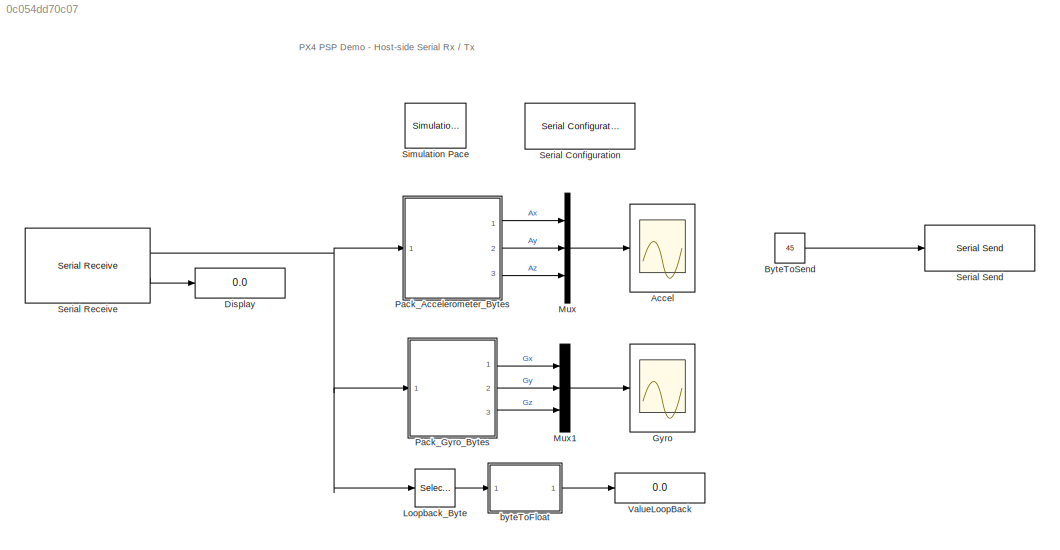
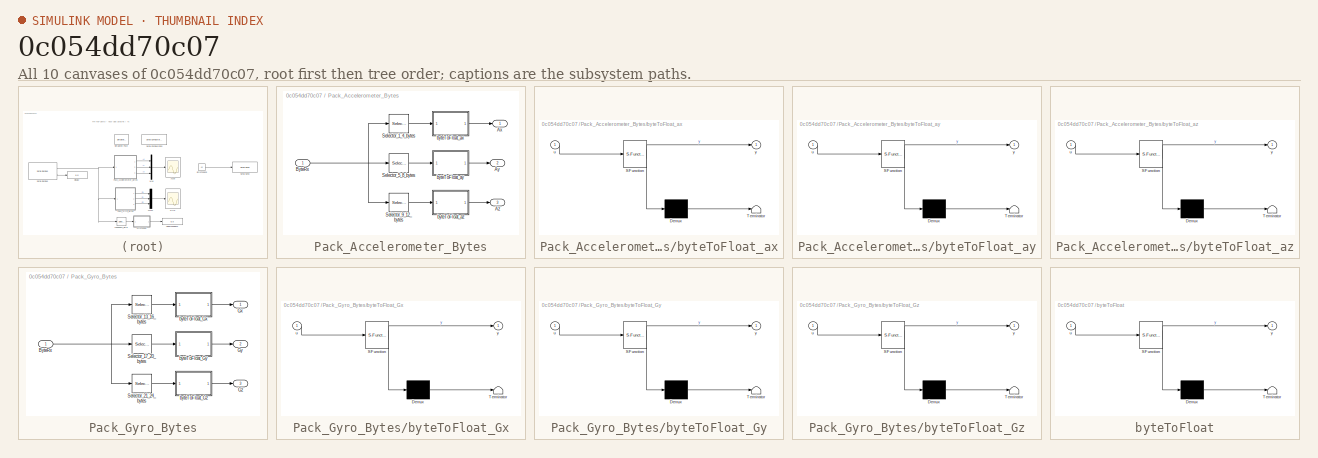
[diagram: thumbnail index - all 10 canvases of the model, root first then tree order]
MODEL slx_0c054dd70c07
KIND model
CONFIG AbsTol = auto
CONFIG EnableMultiTasking = on
CONFIG FixedStep = auto
CONFIG MaxStep = auto
CONFIG MinStep = auto
CONFIG RelTol = 1e-3
CONFIG SampleTimeConstraint = Unconstrained
CONFIG Solver = VariableStepAuto
CONFIG SolverName = VariableStepAuto
CONFIG StartTime = 0.0
CONFIG StopTime = inf
BLOCK [Scope] Accel
  NumInputPorts = 1
  Ports = [1]
  ScopeSpecificationString = Simulink.scopes.TimeScopeBlockCfg('CurrentConfiguration', extmgr.ConfigurationSet(extmgr.Configuration('Core','General UI',true),extmgr.Configuration('Core','Source UI',true),extmgr.Configuration('Sources','WiredSimulink',true),extmgr.Configuration('Visuals','Time Domain',true,'SerializedDisplays',{struct('MinYLimReal','-14.22939','MaxYLimReal','5.67024','YLabelReal','','MinYLimMag','0.00000','Max...<+1422ch>
BLOCK [Constant] ByteToSend
  OutDataTypeStr = uint8
  SampleTime = 0.005
  Value = 45
BLOCK [Display] Display
  Decimation = 1
  Ports = [1]
BLOCK [Scope] Gyro
  NumInputPorts = 1
  Ports = [1]
  ScopeSpecificationString = Simulink.scopes.TimeScopeBlockCfg('CurrentConfiguration', extmgr.ConfigurationSet(extmgr.Configuration('Core','General UI',true),extmgr.Configuration('Core','Source UI',true),extmgr.Configuration('Sources','WiredSimulink',true,'DataLoggingVariableName','ScopeData1'),extmgr.Configuration('Visuals','Time Domain',true,'SerializedDisplays',{struct('MinYLimReal','-5.16602','MaxYLimReal','6.77686','YLab...<+1414ch>
BLOCK [Selector] Loopback_Byte
  IndexOptions = Index vector (dialog)
  Indices = 25:28
  InputPortWidth = 28
  OutputSizes = 1
  Ports = [1, 1]
BLOCK [Mux] Mux
  DisplayOption = bar
  Inputs = 3
  Ports = [3, 1]
BLOCK [Mux] Mux1
  DisplayOption = bar
  Inputs = 3
  Ports = [3, 1]
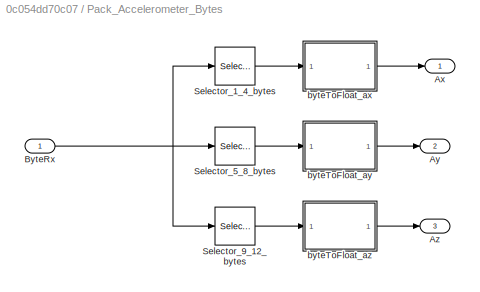
BLOCK [SubSystem] Pack_Accelerometer_Bytes
  Ports = [1, 3]
  RequestExecContextInheritance = off
  Variant = off
BLOCK [Outport] Pack_Accelerometer_Bytes/Ax
  IconDisplay = Port number
BLOCK [Outport] Pack_Accelerometer_Bytes/Ay
  IconDisplay = Port number
  Port = 2
BLOCK [Outport] Pack_Accelerometer_Bytes/Az
  IconDisplay = Port number
  Port = 3
BLOCK [Inport] Pack_Accelerometer_Bytes/ByteRx
  IconDisplay = Port number
BLOCK [Selector] Pack_Accelerometer_Bytes/Selector_1_4_bytes
  IndexOptions = Index vector (dialog)
  Indices = [1:4]
  InputPortWidth = 28
  OutputSizes = 1
  Ports = [1, 1]
BLOCK [Selector] Pack_Accelerometer_Bytes/Selector_5_8_bytes
  IndexOptions = Index vector (dialog)
  Indices = [5 6 7 8]
  InputPortWidth = 28
  OutputSizes = 1
  Ports = [1, 1]
BLOCK [Selector] Pack_Accelerometer_Bytes/Selector_9_12_bytes
  IndexOptions = Index vector (dialog)
  Indices = [9 10 11 12]
  InputPortWidth = 28
  OutputSizes = 1
  Ports = [1, 1]
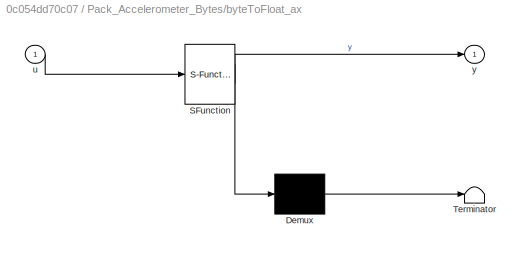
BLOCK [SubSystem] Pack_Accelerometer_Bytes/byteToFloat_ax
  ErrorFcn = Stateflow.Translate.translate
  PermitHierarchicalResolution = ExplicitOnly
  Ports = [1, 1]
  RequestExecContextInheritance = off
  SFBlockType = MATLAB Function
  TreatAsAtomicUnit = on
  Variant = off
BLOCK [Demux] Pack_Accelerometer_Bytes/byteToFloat_ax/ Demux 
  Outputs = 1
  Ports = [1, 1]
BLOCK [S-Function] Pack_Accelerometer_Bytes/byteToFloat_ax/ SFunction 
  EnableBusSupport = on
  FunctionName = sf_sfun
  PortCounts = [1 2]
  Ports = [1, 2]
  SFcnIsStateOwnerBlock = off
  SFunctionDeploymentMode = off
  Tag = Stateflow S-Function px4demo_HostSerial_TxRx 2
BLOCK [Terminator] Pack_Accelerometer_Bytes/byteToFloat_ax/ Terminator 
BLOCK [Inport] Pack_Accelerometer_Bytes/byteToFloat_ax/u
  IconDisplay = Port number
BLOCK [Outport] Pack_Accelerometer_Bytes/byteToFloat_ax/y
  IconDisplay = Port number
BLOCK [SubSystem] Pack_Accelerometer_Bytes/byteToFloat_ay
  ErrorFcn = Stateflow.Translate.translate
  PermitHierarchicalResolution = ExplicitOnly
  Ports = [1, 1]
  RequestExecContextInheritance = off
  SFBlockType = MATLAB Function
  TreatAsAtomicUnit = on
  Variant = off
BLOCK [Demux] Pack_Accelerometer_Bytes/byteToFloat_ay/ Demux 
  Outputs = 1
  Ports = [1, 1]
BLOCK [S-Function] Pack_Accelerometer_Bytes/byteToFloat_ay/ SFunction 
  EnableBusSupport = on
  FunctionName = sf_sfun
  PortCounts = [1 2]
  Ports = [1, 2]
  SFcnIsStateOwnerBlock = off
  SFunctionDeploymentMode = off
  Tag = Stateflow S-Function px4demo_HostSerial_TxRx 1
BLOCK [Terminator] Pack_Accelerometer_Bytes/byteToFloat_ay/ Terminator 
BLOCK [Inport] Pack_Accelerometer_Bytes/byteToFloat_ay/u
  IconDisplay = Port number
BLOCK [Outport] Pack_Accelerometer_Bytes/byteToFloat_ay/y
  IconDisplay = Port number
BLOCK [SubSystem] Pack_Accelerometer_Bytes/byteToFloat_az
  ErrorFcn = Stateflow.Translate.translate
  PermitHierarchicalResolution = ExplicitOnly
  Ports = [1, 1]
  RequestExecContextInheritance = off
  SFBlockType = MATLAB Function
  TreatAsAtomicUnit = on
  Variant = off
BLOCK [Demux] Pack_Accelerometer_Bytes/byteToFloat_az/ Demux 
  Outputs = 1
  Ports = [1, 1]
BLOCK [S-Function] Pack_Accelerometer_Bytes/byteToFloat_az/ SFunction 
  EnableBusSupport = on
  FunctionName = sf_sfun
  PortCounts = [1 2]
  Ports = [1, 2]
  SFcnIsStateOwnerBlock = off
  SFunctionDeploymentMode = off
  Tag = Stateflow S-Function px4demo_HostSerial_TxRx 3
BLOCK [Terminator] Pack_Accelerometer_Bytes/byteToFloat_az/ Terminator 
BLOCK [Inport] Pack_Accelerometer_Bytes/byteToFloat_az/u
  IconDisplay = Port number
BLOCK [Outport] Pack_Accelerometer_Bytes/byteToFloat_az/y
  IconDisplay = Port number
BLOCK [SubSystem] Pack_Gyro_Bytes
  Ports = [1, 3]
  RequestExecContextInheritance = off
  Variant = off
BLOCK [Inport] Pack_Gyro_Bytes/ByteRx
  IconDisplay = Port number
BLOCK [Outport] Pack_Gyro_Bytes/Gx
  IconDisplay = Port number
BLOCK [Outport] Pack_Gyro_Bytes/Gy
  IconDisplay = Port number
  Port = 2
BLOCK [Outport] Pack_Gyro_Bytes/Gz
  IconDisplay = Port number
  Port = 3
BLOCK [Selector] Pack_Gyro_Bytes/Selector_13_16_bytes
  IndexOptions = Index vector (dialog)
  Indices = [13 14 15 16]
  InputPortWidth = 28
  OutputSizes = 1
  Ports = [1, 1]
BLOCK [Selector] Pack_Gyro_Bytes/Selector_17_20_bytes
  IndexOptions = Index vector (dialog)
  Indices = [17:20]
  InputPortWidth = 28
  OutputSizes = 1
  Ports = [1, 1]
BLOCK [Selector] Pack_Gyro_Bytes/Selector_21_24_bytes
  IndexOptions = Index vector (dialog)
  Indices = [21:24]
  InputPortWidth = 28
  OutputSizes = 1
  Ports = [1, 1]
BLOCK [SubSystem] Pack_Gyro_Bytes/byteToFloat_Gx
  ErrorFcn = Stateflow.Translate.translate
  PermitHierarchicalResolution = ExplicitOnly
  Ports = [1, 1]
  RequestExecContextInheritance = off
  SFBlockType = MATLAB Function
  TreatAsAtomicUnit = on
  Variant = off
BLOCK [Demux] Pack_Gyro_Bytes/byteToFloat_Gx/ Demux 
  Outputs = 1
  Ports = [1, 1]
BLOCK [S-Function] Pack_Gyro_Bytes/byteToFloat_Gx/ SFunction 
  EnableBusSupport = on
  FunctionName = sf_sfun
  PortCounts = [1 2]
  Ports = [1, 2]
  SFcnIsStateOwnerBlock = off
  SFunctionDeploymentMode = off
  Tag = Stateflow S-Function px4demo_HostSerial_TxRx 4
BLOCK [Terminator] Pack_Gyro_Bytes/byteToFloat_Gx/ Terminator 
BLOCK [Inport] Pack_Gyro_Bytes/byteToFloat_Gx/u
  IconDisplay = Port number
BLOCK [Outport] Pack_Gyro_Bytes/byteToFloat_Gx/y
  IconDisplay = Port number
BLOCK [SubSystem] Pack_Gyro_Bytes/byteToFloat_Gy
  ErrorFcn = Stateflow.Translate.translate
  PermitHierarchicalResolution = ExplicitOnly
  Ports = [1, 1]
  RequestExecContextInheritance = off
  SFBlockType = MATLAB Function
  TreatAsAtomicUnit = on
  Variant = off
BLOCK [Demux] Pack_Gyro_Bytes/byteToFloat_Gy/ Demux 
  Outputs = 1
  Ports = [1, 1]
BLOCK [S-Function] Pack_Gyro_Bytes/byteToFloat_Gy/ SFunction 
  EnableBusSupport = on
  FunctionName = sf_sfun
  PortCounts = [1 2]
  Ports = [1, 2]
  SFcnIsStateOwnerBlock = off
  SFunctionDeploymentMode = off
  Tag = Stateflow S-Function px4demo_HostSerial_TxRx 5
BLOCK [Terminator] Pack_Gyro_Bytes/byteToFloat_Gy/ Terminator 
BLOCK [Inport] Pack_Gyro_Bytes/byteToFloat_Gy/u
  IconDisplay = Port number
BLOCK [Outport] Pack_Gyro_Bytes/byteToFloat_Gy/y
  IconDisplay = Port number
BLOCK [SubSystem] Pack_Gyro_Bytes/byteToFloat_Gz
  ErrorFcn = Stateflow.Translate.translate
  PermitHierarchicalResolution = ExplicitOnly
  Ports = [1, 1]
  RequestExecContextInheritance = off
  SFBlockType = MATLAB Function
  TreatAsAtomicUnit = on
  Variant = off
BLOCK [Demux] Pack_Gyro_Bytes/byteToFloat_Gz/ Demux 
  Outputs = 1
  Ports = [1, 1]
BLOCK [S-Function] Pack_Gyro_Bytes/byteToFloat_Gz/ SFunction 
  EnableBusSupport = on
  FunctionName = sf_sfun
  PortCounts = [1 2]
  Ports = [1, 2]
  SFcnIsStateOwnerBlock = off
  SFunctionDeploymentMode = off
  Tag = Stateflow S-Function px4demo_HostSerial_TxRx 6
BLOCK [Terminator] Pack_Gyro_Bytes/byteToFloat_Gz/ Terminator 
BLOCK [Inport] Pack_Gyro_Bytes/byteToFloat_Gz/u
  IconDisplay = Port number
BLOCK [Outport] Pack_Gyro_Bytes/byteToFloat_Gz/y
  IconDisplay = Port number
BLOCK [Reference] Serial Configuration  REF=instrumentlib/Serial Configuration
  Ports = []
  Priority = -200000
  SourceBlock = instrumentlib/Serial Configuration
  SourceProductBaseCode = IC
  SourceProductName = Instrument Control Toolbox
  SourceType = Serial Configuration
BLOCK [Reference] Serial Receive  REF=instrumentlib/Serial Receive
  Ports = [0, 2]
  SourceBlock = instrumentlib/Serial Receive
  SourceProductBaseCode = IC
  SourceProductName = Instrument Control Toolbox
  SourceType = Serial Receive
BLOCK [Reference] Serial Send  REF=instrumentlib/Serial Send
  Ports = [1]
  SourceBlock = instrumentlib/Serial Send
  SourceProductBaseCode = IC
  SourceProductName = Instrument Control Toolbox
  SourceType = Serial Send
BLOCK [Reference] Simulation Pace  REF=aerolibanimutils/Simulation Pace
  AttributesFormatString = %<SleepMode>\n%<SimulationPace> sec/sec
  Commented = on
  Ports = []
  SourceBlock = aerolibanimutils/Simulation Pace
  SourceProductBaseCode = AE
  SourceProductName = Aerospace Blockset
  SourceType = Simulation Pace
BLOCK [Display] ValueLoopBack
  Decimation = 1
  Ports = [1]
BLOCK [SubSystem] byteToFloat
  ErrorFcn = Stateflow.Translate.translate
  PermitHierarchicalResolution = ExplicitOnly
  Ports = [1, 1]
  RequestExecContextInheritance = off
  SFBlockType = MATLAB Function
  TreatAsAtomicUnit = on
  Variant = off
BLOCK [Demux] byteToFloat/ Demux 
  Outputs = 1
  Ports = [1, 1]
BLOCK [S-Function] byteToFloat/ SFunction 
  EnableBusSupport = on
  FunctionName = sf_sfun
  PortCounts = [1 2]
  Ports = [1, 2]
  SFcnIsStateOwnerBlock = off
  SFunctionDeploymentMode = off
  Tag = Stateflow S-Function px4demo_HostSerial_TxRx 7
BLOCK [Terminator] byteToFloat/ Terminator 
BLOCK [Inport] byteToFloat/u
  IconDisplay = Port number
BLOCK [Outport] byteToFloat/y
  IconDisplay = Port number
ANNOTATION (root): PX4 PSP Demo - Host-side Serial Rx / Tx
LINE ByteToSend:1 -> Serial Send:1
LINE Loopback_Byte:1 -> byteToFloat:1
LINE Mux1:1 -> Gyro:1
LINE Mux:1 -> Accel:1
NET Pack_Accelerometer_Bytes/ByteRx:1 -> Pack_Accelerometer_Bytes/Selector_1_4_bytes:1, Pack_Accelerometer_Bytes/Selector_5_8_bytes:1, Pack_Accelerometer_Bytes/Selector_9_12_bytes:1
LINE Pack_Accelerometer_Bytes/Selector_1_4_bytes:1 -> Pack_Accelerometer_Bytes/byteToFloat_ax:1
LINE Pack_Accelerometer_Bytes/Selector_5_8_bytes:1 -> Pack_Accelerometer_Bytes/byteToFloat_ay:1
LINE Pack_Accelerometer_Bytes/Selector_9_12_bytes:1 -> Pack_Accelerometer_Bytes/byteToFloat_az:1
LINE Pack_Accelerometer_Bytes/byteToFloat_ax:1 -> Pack_Accelerometer_Bytes/Ax:1
LINE Pack_Accelerometer_Bytes/byteToFloat_ay:1 -> Pack_Accelerometer_Bytes/Ay:1
LINE Pack_Accelerometer_Bytes/byteToFloat_az:1 -> Pack_Accelerometer_Bytes/Az:1
LINE Pack_Accelerometer_Bytes:1 -> Mux:1
LINE Pack_Accelerometer_Bytes:2 -> Mux:2
LINE Pack_Accelerometer_Bytes:3 -> Mux:3
NET Pack_Gyro_Bytes/ByteRx:1 -> Pack_Gyro_Bytes/Selector_13_16_bytes:1, Pack_Gyro_Bytes/Selector_17_20_bytes:1, Pack_Gyro_Bytes/Selector_21_24_bytes:1
LINE Pack_Gyro_Bytes/Selector_13_16_bytes:1 -> Pack_Gyro_Bytes/byteToFloat_Gx:1
LINE Pack_Gyro_Bytes/Selector_17_20_bytes:1 -> Pack_Gyro_Bytes/byteToFloat_Gy:1
LINE Pack_Gyro_Bytes/Selector_21_24_bytes:1 -> Pack_Gyro_Bytes/byteToFloat_Gz:1
LINE Pack_Gyro_Bytes/byteToFloat_Gx:1 -> Pack_Gyro_Bytes/Gx:1
LINE Pack_Gyro_Bytes/byteToFloat_Gy:1 -> Pack_Gyro_Bytes/Gy:1
LINE Pack_Gyro_Bytes/byteToFloat_Gz:1 -> Pack_Gyro_Bytes/Gz:1
LINE Pack_Gyro_Bytes:1 -> Mux1:1
LINE Pack_Gyro_Bytes:2 -> Mux1:2
LINE Pack_Gyro_Bytes:3 -> Mux1:3
NET Serial Receive:1 -> Loopback_Byte:1, Pack_Accelerometer_Bytes:1, Pack_Gyro_Bytes:1
LINE Serial Receive:2 -> Display:1
LINE byteToFloat:1 -> ValueLoopBack:1
note: NET lines group one-source signal fan-out (src -> all destinations, sorted); 1:1 wires keep LINE
CHART Pack_Accelerometer_Bytes/byteToFloat_ay states=1 transitions=1
  STATE_LABEL 'eML_blk_kernel()'
  STATE_LABEL "SCRIPT:\nfunction y = fcn(u)\n%#codegen\ny = single(0);\ny = single(typecast(uint8(u),'single'));\n% y = u;"
CHART Pack_Accelerometer_Bytes/byteToFloat_ax states=1 transitions=1
  STATE_LABEL 'eML_blk_kernel()'
  STATE_LABEL "SCRIPT:\nfunction y = fcn(u)\n%#codegen\ny = single(0);\ny = single(typecast(uint8(u),'single'));\n% y = u;"
CHART Pack_Accelerometer_Bytes/byteToFloat_az states=1 transitions=1
  STATE_LABEL 'eML_blk_kernel()'
  STATE_LABEL "SCRIPT:\nfunction y = fcn(u)\n%#codegen\ny = single(0);\ny = single(typecast(uint8(u),'single'));\n% y = u;"
CHART Pack_Gyro_Bytes/byteToFloat_Gx states=1 transitions=1
  STATE_LABEL 'eML_blk_kernel()'
  STATE_LABEL "SCRIPT:\nfunction y = fcn(u)\n%#codegen\ny = single(0);\ny = single(typecast(uint8(u),'single'));\n% y = u;"
CHART Pack_Gyro_Bytes/byteToFloat_Gy states=1 transitions=1
  STATE_LABEL 'eML_blk_kernel()'
  STATE_LABEL "SCRIPT:\nfunction y = fcn(u)\n%#codegen\ny = single(0);\ny = single(typecast(uint8(u),'single'));\n% y = u;"
CHART Pack_Gyro_Bytes/byteToFloat_Gz states=1 transitions=1
  STATE_LABEL 'eML_blk_kernel()'
  STATE_LABEL "SCRIPT:\nfunction y = fcn(u)\n%#codegen\ny = single(0);\ny = single(typecast(uint8(u),'single'));\n% y = u;"
CHART byteToFloat states=1 transitions=1
  STATE_LABEL 'eML_blk_kernel()'
  STATE_LABEL "SCRIPT:\nfunction y = fcn(u)\n%#codegen\ny = single(0);\ny = single(typecast(uint8(u),'single'));\n% y = u;"
